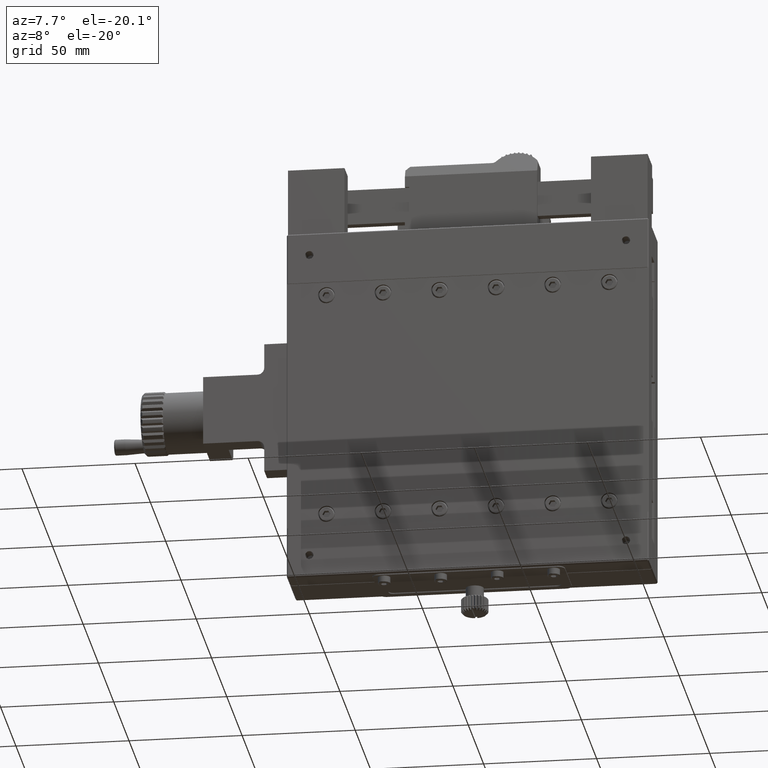
[diagram: clean part render]
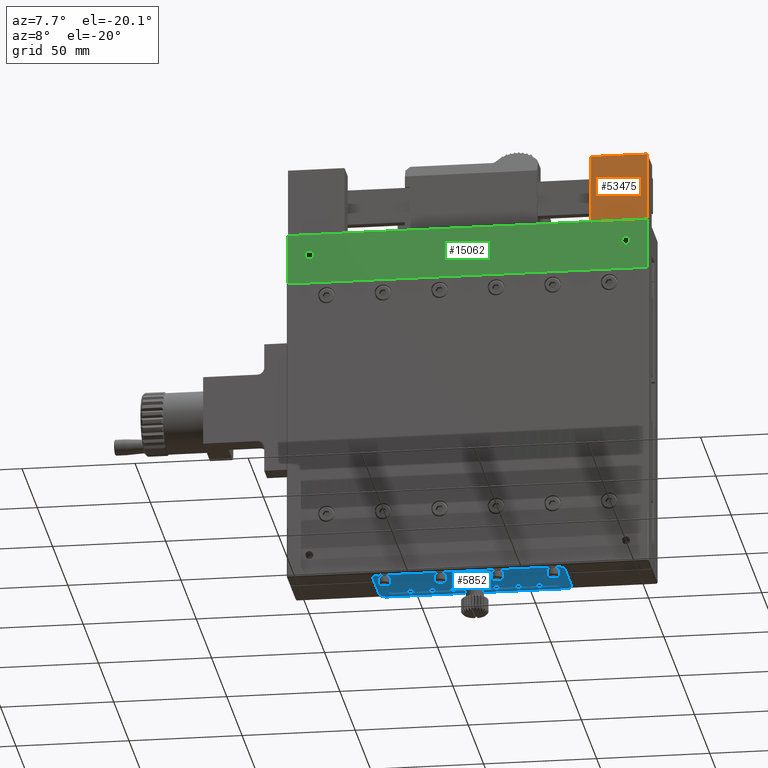
[diagram: same view with three faces highlighted in distinct colors, each labeled with its STEP entity id]
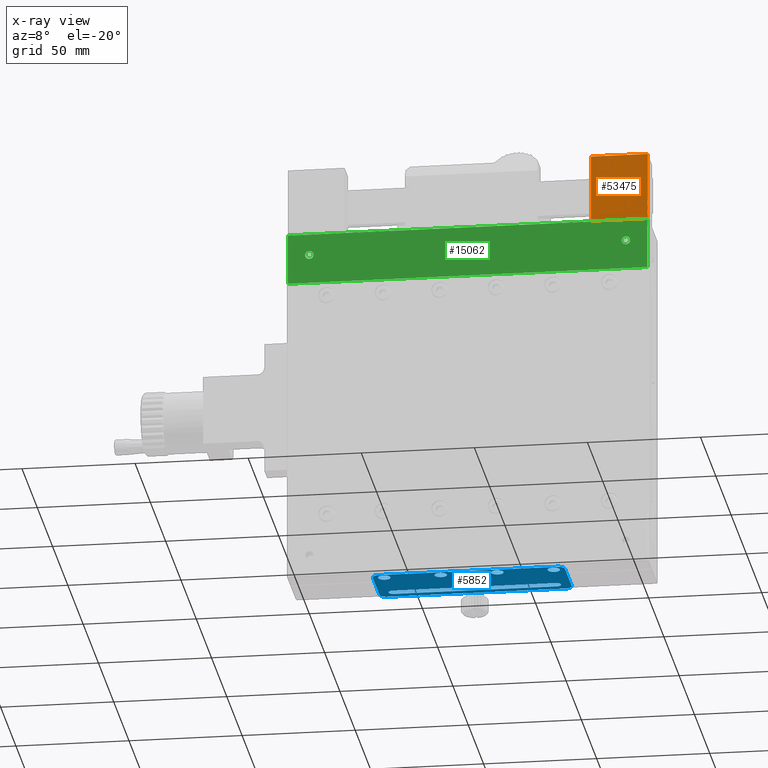
[diagram: x-ray of the same camera — body ghosted, the three highlighted faces saturated]
A machine part, auxiliary view with three faces highlighted in distinct colors.
The next image is the same camera in x-ray (body ghosted, the three faces saturated) — at least one of them is partly hidden behind the body in this view.
Their STEP definitions:

[orange] entity #53475 — the highlighted planar face has unit normal (0, -1, 0).
#1744 = EDGE_CURVE ( 'NONE', #56070, #10539, #27890, .T. ) ;
#5442 = ORIENTED_EDGE ( 'NONE', *, *, #47075, .T. ) ;
#6147 = LINE ( 'NONE', #25250, #39465 ) ;
#7701 = ORIENTED_EDGE ( 'NONE', *, *, #46593, .T. ) ;
#8169 = CARTESIAN_POINT ( 'NONE',  ( -159.5000000000000000, 0.5000000000000000000, 110.0000000000000000 ) ) ;
#9274 = EDGE_CURVE ( 'NONE', #33599, #56070, #6147, .T. ) ;
#9467 = EDGE_LOOP ( 'NONE', ( #10832, #5442, #7701, #27907 ) ) ;
#10539 = VERTEX_POINT ( 'NONE', #12409 ) ;
#10832 = ORIENTED_EDGE ( 'NONE', *, *, #1744, .T. ) ;
#12409 = CARTESIAN_POINT ( 'NONE',  ( -0.5000000000000002220, 0.5000000000000001110, 110.0000000000000000 ) ) ;
#15753 = CARTESIAN_POINT ( 'NONE',  ( -25.50000000000000000, 0.5000000000000001110, 110.0000000000000000 ) ) ;
#17102 = CARTESIAN_POINT ( 'NONE',  ( -159.5000000000000000, 0.5000000000000000000, 110.0000000000000000 ) ) ;
#18682 = VECTOR ( 'NONE', #50336, 1000.000000000000000 ) ;
#20592 = VERTEX_POINT ( 'NONE', #15753 ) ;
#21171 = CARTESIAN_POINT ( 'NONE',  ( -25.49999999999999645, 0.5000000000000000000, 80.00000000000000000 ) ) ;
#25250 = CARTESIAN_POINT ( 'NONE',  ( -160.0000000000000000, 0.5000000000000000000, 80.00000000000000000 ) ) ;
#26801 = LINE ( 'NONE', #17102, #37261 ) ;
#27890 = LINE ( 'NONE', #47005, #18682 ) ;
#27907 = ORIENTED_EDGE ( 'NONE', *, *, #9274, .T. ) ;
#29861 = LINE ( 'NONE', #54331, #35226 ) ;
#33599 = VERTEX_POINT ( 'NONE', #21171 ) ;
#35226 = VECTOR ( 'NONE', #41369, 1000.000000000000000 ) ;
#35270 = DIRECTION ( 'NONE',  ( 1.000000000000000000, -0.000000000000000000, 0.000000000000000000 ) ) ;
#35425 = DIRECTION ( 'NONE',  ( 0.000000000000000000, -1.000000000000000000, 0.000000000000000000 ) ) ;
#37261 = VECTOR ( 'NONE', #50324, 1000.000000000000000 ) ;
#39465 = VECTOR ( 'NONE', #35270, 1000.000000000000000 ) ;
#41369 = DIRECTION ( 'NONE',  ( 0.000000000000000000, -0.000000000000000000, -1.000000000000000000 ) ) ;
#44704 = AXIS2_PLACEMENT_3D ( 'NONE', #8169, #35425, #54567 ) ;
#46593 = EDGE_CURVE ( 'NONE', #20592, #33599, #29861, .T. ) ;
#47005 = CARTESIAN_POINT ( 'NONE',  ( -0.5000000000000004441, 0.5000000000000000000, 110.0000000000000000 ) ) ;
#47075 = EDGE_CURVE ( 'NONE', #10539, #20592, #26801, .T. ) ;
#50324 = DIRECTION ( 'NONE',  ( -1.000000000000000000, -0.000000000000000000, -0.000000000000000000 ) ) ;
#50336 = DIRECTION ( 'NONE',  ( -0.000000000000000000, 0.000000000000000000, 1.000000000000000000 ) ) ;
#53475 = ADVANCED_FACE ( 'NONE', ( #60517 ), #55792, .T. ) ;
#54331 = CARTESIAN_POINT ( 'NONE',  ( -25.49999999999999645, 0.5000000000000000000, 110.0000000000000000 ) ) ;
#54567 = DIRECTION ( 'NONE',  ( 0.000000000000000000, -0.000000000000000000, -1.000000000000000000 ) ) ;
#55792 = PLANE ( 'NONE',  #44704 ) ;
#56070 = VERTEX_POINT ( 'NONE', #57504 ) ;
#57504 = CARTESIAN_POINT ( 'NONE',  ( -0.4999999999999950040, 0.5000000000000000000, 80.00000000000000000 ) ) ;
#60517 = FACE_OUTER_BOUND ( 'NONE', #9467, .T. ) ;

[blue] entity #5852 — the highlighted planar face has unit normal (0, 0, 1).
#1318 = DIRECTION ( 'NONE',  ( 1.000000000000000000, 0.000000000000000000, 0.000000000000000000 ) ) ;
#2185 = DIRECTION ( 'NONE',  ( 1.000000000000000000, 0.000000000000000000, 0.000000000000000000 ) ) ;
#2198 = ORIENTED_EDGE ( 'NONE', *, *, #23517, .T. ) ;
#2387 = CARTESIAN_POINT ( 'NONE',  ( -119.5000000000000284, 29.00000000000000711, -80.50000000000000000 ) ) ;
#2589 = PLANE ( 'NONE',  #23372 ) ;
#2691 = CIRCLE ( 'NONE', #44743, 2.750000000000002665 ) ;
#2830 = CARTESIAN_POINT ( 'NONE',  ( -37.50000000000000000, 4.000000000000000000, -80.50000000000000000 ) ) ;
#2917 = CARTESIAN_POINT ( 'NONE',  ( -122.5000000000000000, 26.00000000000000355, -80.50000000000000000 ) ) ;
#3234 = FACE_BOUND ( 'NONE', #37998, .T. ) ;
#3583 = EDGE_CURVE ( 'NONE', #16183, #48871, #17702, .T. ) ;
#3729 = EDGE_CURVE ( 'NONE', #48871, #6278, #61439, .T. ) ;
#4860 = ORIENTED_EDGE ( 'NONE', *, *, #24757, .F. ) ;
#5064 = CARTESIAN_POINT ( 'NONE',  ( -44.00000000000000000, 23.50000000000000000, -80.50000000000000000 ) ) ;
#5435 = CARTESIAN_POINT ( 'NONE',  ( -89.75000000000000000, 4.500000000000000888, -80.50000000000000000 ) ) ;
#5569 = DIRECTION ( 'NONE',  ( -0.000000000000000000, -0.000000000000000000, -1.000000000000000000 ) ) ;
#5852 = ADVANCED_FACE ( 'NONE', ( #26396, #17010, #3234, #22324, #11972, #40195 ), #2589, .F. ) ;
#6272 = EDGE_LOOP ( 'NONE', ( #24681, #43340, #48207, #41958, #4860, #33880, #24431, #19159 ) ) ;
#6278 = VERTEX_POINT ( 'NONE', #57544 ) ;
#6373 = VERTEX_POINT ( 'NONE', #11974 ) ;
#6545 = DIRECTION ( 'NONE',  ( 1.000000000000000000, 0.000000000000000000, 0.000000000000000000 ) ) ;
#6650 = ORIENTED_EDGE ( 'NONE', *, *, #12755, .F. ) ;
#7579 = EDGE_LOOP ( 'NONE', ( #41178 ) ) ;
#7750 = CIRCLE ( 'NONE', #58786, 2.149999999999999023 ) ;
#8062 = VECTOR ( 'NONE', #33444, 1000.000000000000000 ) ;
#8585 = CIRCLE ( 'NONE', #24594, 3.000000000000016431 ) ;
#9744 = EDGE_CURVE ( 'NONE', #35169, #54342, #59556, .T. ) ;
#10602 = CARTESIAN_POINT ( 'NONE',  ( -40.50000000000000000, 26.00000000000000355, -80.50000000000000000 ) ) ;
#10649 = DIRECTION ( 'NONE',  ( 1.000000000000000000, 0.000000000000000000, 0.000000000000000000 ) ) ;
#11677 = AXIS2_PLACEMENT_3D ( 'NONE', #5064, #47999, #10649 ) ;
#11802 = CARTESIAN_POINT ( 'NONE',  ( -42.50000000000000000, 4.500000000000000888, -80.50000000000000000 ) ) ;
#11893 = DIRECTION ( 'NONE',  ( -0.000000000000000000, 1.000000000000000000, 0.000000000000000000 ) ) ;
#11972 = FACE_BOUND ( 'NONE', #7579, .T. ) ;
#11974 = CARTESIAN_POINT ( 'NONE',  ( -39.75000000000000000, 4.500000000000000888, -80.50000000000000000 ) ) ;
#12413 = EDGE_CURVE ( 'NONE', #54342, #27736, #35993, .T. ) ;
#12559 = EDGE_LOOP ( 'NONE', ( #48182 ) ) ;
#12755 = EDGE_CURVE ( 'NONE', #38926, #38926, #36037, .T. ) ;
#14678 = VECTOR ( 'NONE', #37272, 1000.000000000000000 ) ;
#14868 = VERTEX_POINT ( 'NONE', #22109 ) ;
#15901 = DIRECTION ( 'NONE',  ( 1.000000000000000000, 0.000000000000000000, 0.000000000000000000 ) ) ;
#16183 = VERTEX_POINT ( 'NONE', #20196 ) ;
#16598 = CARTESIAN_POINT ( 'NONE',  ( -44.00000000000000000, 25.64999999999999858, -80.50000000000000000 ) ) ;
#17010 = FACE_BOUND ( 'NONE', #20991, .T. ) ;
#17235 = DIRECTION ( 'NONE',  ( 1.000000000000000000, 0.000000000000000000, 0.000000000000000000 ) ) ;
#17447 = CARTESIAN_POINT ( 'NONE',  ( -92.50000000000000000, 4.500000000000000888, -80.50000000000000000 ) ) ;
#17630 = CARTESIAN_POINT ( 'NONE',  ( -40.50000000000000000, 29.00000000000000000, -80.50000000000000000 ) ) ;
#17702 = CIRCLE ( 'NONE', #11677, 2.149999999999999023 ) ;
#18981 = DIRECTION ( 'NONE',  ( 1.000000000000000000, 0.000000000000000000, 0.000000000000000000 ) ) ;
#18982 = VERTEX_POINT ( 'NONE', #33326 ) ;
#19159 = ORIENTED_EDGE ( 'NONE', *, *, #50647, .F. ) ;
#20196 = CARTESIAN_POINT ( 'NONE',  ( -44.00000000000000000, 21.35000000000000142, -80.50000000000000000 ) ) ;
#20788 = AXIS2_PLACEMENT_3D ( 'NONE', #17447, #35909, #18981 ) ;
#20819 = ORIENTED_EDGE ( 'NONE', *, *, #3729, .T. ) ;
#20975 = DIRECTION ( 'NONE',  ( 0.000000000000000000, 0.000000000000000000, 1.000000000000000000 ) ) ;
#20991 = EDGE_LOOP ( 'NONE', ( #2198, #41295, #46362, #20819 ) ) ;
#21017 = DIRECTION ( 'NONE',  ( 0.000000000000000000, 0.000000000000000000, 1.000000000000000000 ) ) ;
#22109 = CARTESIAN_POINT ( 'NONE',  ( -40.49999999999999289, 1.000000000000000000, -80.50000000000000000 ) ) ;
#22222 = EDGE_CURVE ( 'NONE', #31375, #18982, #61673, .T. ) ;
#22324 = FACE_BOUND ( 'NONE', #12559, .T. ) ;
#23036 = AXIS2_PLACEMENT_3D ( 'NONE', #52819, #46869, #23060 ) ;
#23060 = DIRECTION ( 'NONE',  ( 1.000000000000000000, 0.000000000000000000, 0.000000000000000000 ) ) ;
#23372 = AXIS2_PLACEMENT_3D ( 'NONE', #36412, #55547, #59329 ) ;
#23517 = EDGE_CURVE ( 'NONE', #6278, #41956, #7750, .T. ) ;
#24071 = EDGE_CURVE ( 'NONE', #6373, #6373, #39923, .T. ) ;
#24431 = ORIENTED_EDGE ( 'NONE', *, *, #22222, .F. ) ;
#24594 = AXIS2_PLACEMENT_3D ( 'NONE', #59274, #25712, #1318 ) ;
#24681 = ORIENTED_EDGE ( 'NONE', *, *, #56184, .F. ) ;
#24757 = EDGE_CURVE ( 'NONE', #39988, #14868, #61275, .T. ) ;
#24891 = CARTESIAN_POINT ( 'NONE',  ( -40.50000000000000000, 29.00000000000000000, -80.50000000000000000 ) ) ;
#25013 = VERTEX_POINT ( 'NONE', #44151 ) ;
#25712 = DIRECTION ( 'NONE',  ( 0.000000000000000000, 0.000000000000000000, 1.000000000000000000 ) ) ;
#26396 = FACE_OUTER_BOUND ( 'NONE', #6272, .T. ) ;
#26503 = DIRECTION ( 'NONE',  ( 0.000000000000000000, 0.000000000000000000, 1.000000000000000000 ) ) ;
#27736 = VERTEX_POINT ( 'NONE', #17630 ) ;
#28683 = VERTEX_POINT ( 'NONE', #2387 ) ;
#29291 = CARTESIAN_POINT ( 'NONE',  ( -116.0000000000000000, 21.35000000000000142, -80.50000000000000000 ) ) ;
#30512 = DIRECTION ( 'NONE',  ( -1.000000000000000000, -0.000000000000000000, 0.000000000000000000 ) ) ;
#30734 = CARTESIAN_POINT ( 'NONE',  ( -37.50000000000000000, 26.00000000000000355, -80.50000000000000000 ) ) ;
#31132 = CARTESIAN_POINT ( 'NONE',  ( -116.0000000000000000, 23.50000000000000000, -80.50000000000000000 ) ) ;
#31375 = VERTEX_POINT ( 'NONE', #2917 ) ;
#31435 = DIRECTION ( 'NONE',  ( 0.000000000000000000, 0.000000000000000000, 1.000000000000000000 ) ) ;
#31821 = DIRECTION ( 'NONE',  ( -0.000000000000000000, -0.000000000000000000, -1.000000000000000000 ) ) ;
#32466 = VECTOR ( 'NONE', #17235, 1000.000000000000000 ) ;
#32720 = CARTESIAN_POINT ( 'NONE',  ( -119.5000000000000142, 1.000000000000000000, -80.50000000000000000 ) ) ;
#33326 = CARTESIAN_POINT ( 'NONE',  ( -122.5000000000000000, 3.999999999999994671, -80.50000000000000000 ) ) ;
#33444 = DIRECTION ( 'NONE',  ( -0.000000000000000000, -1.000000000000000000, 0.000000000000000000 ) ) ;
#33880 = ORIENTED_EDGE ( 'NONE', *, *, #39473, .F. ) ;
#33938 = VECTOR ( 'NONE', #30512, 1000.000000000000000 ) ;
#34439 = EDGE_CURVE ( 'NONE', #41956, #16183, #35702, .T. ) ;
#35169 = VERTEX_POINT ( 'NONE', #50310 ) ;
#35702 = LINE ( 'NONE', #54855, #32466 ) ;
#35861 = AXIS2_PLACEMENT_3D ( 'NONE', #38958, #21017, #57773 ) ;
#35909 = DIRECTION ( 'NONE',  ( -0.000000000000000000, -0.000000000000000000, -1.000000000000000000 ) ) ;
#35993 = CIRCLE ( 'NONE', #53014, 3.000000000000002665 ) ;
#36037 = CIRCLE ( 'NONE', #23036, 2.750000000000002665 ) ;
#36412 = CARTESIAN_POINT ( 'NONE',  ( -119.5000000000000142, 26.00000000000000355, -80.50000000000000000 ) ) ;
#37272 = DIRECTION ( 'NONE',  ( -1.000000000000000000, -0.000000000000000000, 0.000000000000000000 ) ) ;
#37998 = EDGE_LOOP ( 'NONE', ( #39725 ) ) ;
#38617 = CARTESIAN_POINT ( 'NONE',  ( -114.7500000000000000, 4.500000000000000888, -80.50000000000000000 ) ) ;
#38926 = VERTEX_POINT ( 'NONE', #38617 ) ;
#38958 = CARTESIAN_POINT ( 'NONE',  ( -40.50000000000000000, 3.999999999999989786, -80.50000000000000000 ) ) ;
#39473 = EDGE_CURVE ( 'NONE', #18982, #39988, #40708, .T. ) ;
#39725 = ORIENTED_EDGE ( 'NONE', *, *, #24071, .F. ) ;
#39923 = CIRCLE ( 'NONE', #43963, 2.750000000000002665 ) ;
#39988 = VERTEX_POINT ( 'NONE', #47099 ) ;
#40195 = FACE_BOUND ( 'NONE', #60858, .T. ) ;
#40708 = CIRCLE ( 'NONE', #49754, 2.999999999999988898 ) ;
#40853 = CIRCLE ( 'NONE', #35861, 2.999999999999988898 ) ;
#41168 = EDGE_CURVE ( 'NONE', #14868, #35169, #40853, .T. ) ;
#41178 = ORIENTED_EDGE ( 'NONE', *, *, #61886, .F. ) ;
#41295 = ORIENTED_EDGE ( 'NONE', *, *, #34439, .T. ) ;
#41816 = CIRCLE ( 'NONE', #20788, 2.750000000000002665 ) ;
#41956 = VERTEX_POINT ( 'NONE', #29291 ) ;
#41958 = ORIENTED_EDGE ( 'NONE', *, *, #41168, .F. ) ;
#43340 = ORIENTED_EDGE ( 'NONE', *, *, #12413, .F. ) ;
#43963 = AXIS2_PLACEMENT_3D ( 'NONE', #11802, #5569, #15901 ) ;
#44151 = CARTESIAN_POINT ( 'NONE',  ( -64.75000000000000000, 4.500000000000000888, -80.50000000000000000 ) ) ;
#44743 = AXIS2_PLACEMENT_3D ( 'NONE', #60990, #31821, #6545 ) ;
#46362 = ORIENTED_EDGE ( 'NONE', *, *, #3583, .T. ) ;
#46869 = DIRECTION ( 'NONE',  ( -0.000000000000000000, -0.000000000000000000, -1.000000000000000000 ) ) ;
#47099 = CARTESIAN_POINT ( 'NONE',  ( -119.5000000000000142, 1.000000000000000000, -80.50000000000000000 ) ) ;
#47602 = CARTESIAN_POINT ( 'NONE',  ( -44.00000000000000000, 25.64999999999999858, -80.50000000000000000 ) ) ;
#47999 = DIRECTION ( 'NONE',  ( 0.000000000000000000, 0.000000000000000000, 1.000000000000000000 ) ) ;
#48182 = ORIENTED_EDGE ( 'NONE', *, *, #53761, .F. ) ;
#48207 = ORIENTED_EDGE ( 'NONE', *, *, #9744, .F. ) ;
#48871 = VERTEX_POINT ( 'NONE', #16598 ) ;
#49708 = CARTESIAN_POINT ( 'NONE',  ( -119.5000000000000142, 3.999999999999989786, -80.50000000000000000 ) ) ;
#49754 = AXIS2_PLACEMENT_3D ( 'NONE', #49708, #26503, #50640 ) ;
#50310 = CARTESIAN_POINT ( 'NONE',  ( -37.50000000000000000, 3.999999999999994671, -80.50000000000000000 ) ) ;
#50558 = DIRECTION ( 'NONE',  ( 1.000000000000000000, 0.000000000000000000, 0.000000000000000000 ) ) ;
#50640 = DIRECTION ( 'NONE',  ( 1.000000000000000000, 0.000000000000000000, 0.000000000000000000 ) ) ;
#50647 = EDGE_CURVE ( 'NONE', #28683, #31375, #8585, .T. ) ;
#52467 = DIRECTION ( 'NONE',  ( 1.000000000000000000, 0.000000000000000000, 0.000000000000000000 ) ) ;
#52819 = CARTESIAN_POINT ( 'NONE',  ( -117.5000000000000142, 4.500000000000000888, -80.50000000000000000 ) ) ;
#53014 = AXIS2_PLACEMENT_3D ( 'NONE', #10602, #20975, #2185 ) ;
#53097 = VERTEX_POINT ( 'NONE', #5435 ) ;
#53761 = EDGE_CURVE ( 'NONE', #25013, #25013, #2691, .T. ) ;
#54342 = VERTEX_POINT ( 'NONE', #30734 ) ;
#54855 = CARTESIAN_POINT ( 'NONE',  ( -116.0000000000000000, 21.35000000000000142, -80.50000000000000000 ) ) ;
#55547 = DIRECTION ( 'NONE',  ( 0.000000000000000000, 0.000000000000000000, 1.000000000000000000 ) ) ;
#56184 = EDGE_CURVE ( 'NONE', #27736, #28683, #58737, .T. ) ;
#56640 = CARTESIAN_POINT ( 'NONE',  ( -122.5000000000000000, 26.00000000000000355, -80.50000000000000000 ) ) ;
#56974 = VECTOR ( 'NONE', #52467, 1000.000000000000000 ) ;
#57544 = CARTESIAN_POINT ( 'NONE',  ( -116.0000000000000000, 25.64999999999999858, -80.50000000000000000 ) ) ;
#57773 = DIRECTION ( 'NONE',  ( 1.000000000000000000, 0.000000000000000000, 0.000000000000000000 ) ) ;
#58737 = LINE ( 'NONE', #24891, #33938 ) ;
#58786 = AXIS2_PLACEMENT_3D ( 'NONE', #31132, #31435, #50558 ) ;
#59274 = CARTESIAN_POINT ( 'NONE',  ( -119.5000000000000142, 26.00000000000000355, -80.50000000000000000 ) ) ;
#59329 = DIRECTION ( 'NONE',  ( 1.000000000000000000, 0.000000000000000000, -0.000000000000000000 ) ) ;
#59420 = VECTOR ( 'NONE', #11893, 1000.000000000000000 ) ;
#59556 = LINE ( 'NONE', #2830, #59420 ) ;
#60858 = EDGE_LOOP ( 'NONE', ( #6650 ) ) ;
#60990 = CARTESIAN_POINT ( 'NONE',  ( -67.50000000000000000, 4.500000000000000888, -80.50000000000000000 ) ) ;
#61275 = LINE ( 'NONE', #32720, #56974 ) ;
#61439 = LINE ( 'NONE', #47602, #14678 ) ;
#61673 = LINE ( 'NONE', #56640, #8062 ) ;
#61886 = EDGE_CURVE ( 'NONE', #53097, #53097, #41816, .T. ) ;

[green] entity #15062 — the highlighted planar face has unit normal (0, -1, 0).
#1084 = FACE_OUTER_BOUND ( 'NONE', #17915, .T. ) ;
#4838 = CARTESIAN_POINT ( 'NONE',  ( -0.5000000000000004441, 8.131516293641283255E-17, 57.00000000000000000 ) ) ;
#7130 = VERTEX_POINT ( 'NONE', #4838 ) ;
#8430 = EDGE_CURVE ( 'NONE', #26149, #26149, #54374, .T. ) ;
#9931 = DIRECTION ( 'NONE',  ( -1.000000000000000000, -0.000000000000000000, -0.000000000000000000 ) ) ;
#10169 = CIRCLE ( 'NONE', #46213, 1.844000000000012296 ) ;
#12772 = CARTESIAN_POINT ( 'NONE',  ( -0.4999999999999588107, -1.016439536705160160E-16, 79.50000000000000000 ) ) ;
#12787 = EDGE_LOOP ( 'NONE', ( #40385 ) ) ;
#13715 = LINE ( 'NONE', #56657, #53597 ) ;
#14315 = DIRECTION ( 'NONE',  ( 1.000000000000000000, 0.000000000000000000, -0.000000000000000000 ) ) ;
#15062 = ADVANCED_FACE ( 'NONE', ( #1084, #58406, #39575 ), #49937, .T. ) ;
#16033 = VERTEX_POINT ( 'NONE', #12772 ) ;
#16082 = CARTESIAN_POINT ( 'NONE',  ( -160.0000000000000000, 0.000000000000000000, 80.00000000000000000 ) ) ;
#17370 = AXIS2_PLACEMENT_3D ( 'NONE', #50268, #27667, #55890 ) ;
#17771 = VECTOR ( 'NONE', #47696, 1000.000000000000000 ) ;
#17915 = EDGE_LOOP ( 'NONE', ( #51768, #29635, #48042, #48136 ) ) ;
#18177 = CARTESIAN_POINT ( 'NONE',  ( -150.0000000000000000, 0.000000000000000000, 71.84400000000002251 ) ) ;
#19049 = CARTESIAN_POINT ( 'NONE',  ( -160.0000000000000000, 0.000000000000000000, 79.50000000000000000 ) ) ;
#19494 = CARTESIAN_POINT ( 'NONE',  ( -159.5000000000000000, 0.000000000000000000, 80.00000000000000000 ) ) ;
#20978 = EDGE_LOOP ( 'NONE', ( #56574 ) ) ;
#21960 = CARTESIAN_POINT ( 'NONE',  ( -160.0000000000000000, 0.000000000000000000, 57.00000000000000000 ) ) ;
#23707 = VECTOR ( 'NONE', #14315, 1000.000000000000000 ) ;
#23713 = EDGE_CURVE ( 'NONE', #42625, #36896, #57112, .T. ) ;
#25181 = DIRECTION ( 'NONE',  ( 0.000000000000000000, -0.000000000000000000, -1.000000000000000000 ) ) ;
#25711 = CARTESIAN_POINT ( 'NONE',  ( -159.5000000000000000, -2.439454888092384977E-16, 79.50000000000000000 ) ) ;
#26149 = VERTEX_POINT ( 'NONE', #54983 ) ;
#27667 = DIRECTION ( 'NONE',  ( 0.000000000000000000, 1.000000000000000000, 0.000000000000000000 ) ) ;
#28448 = DIRECTION ( 'NONE',  ( 0.000000000000000000, 0.000000000000000000, 1.000000000000000000 ) ) ;
#28772 = DIRECTION ( 'NONE',  ( 0.000000000000000000, 1.000000000000000000, 0.000000000000000000 ) ) ;
#29635 = ORIENTED_EDGE ( 'NONE', *, *, #23713, .F. ) ;
#30910 = VECTOR ( 'NONE', #9931, 1000.000000000000000 ) ;
#33196 = CARTESIAN_POINT ( 'NONE',  ( -159.5000000000000000, 1.355252715606880543E-17, 57.00000000000000000 ) ) ;
#35496 = DIRECTION ( 'NONE',  ( 0.000000000000000000, -1.000000000000000000, 0.000000000000000000 ) ) ;
#36896 = VERTEX_POINT ( 'NONE', #25711 ) ;
#39254 = EDGE_CURVE ( 'NONE', #42625, #7130, #48185, .T. ) ;
#39575 = FACE_BOUND ( 'NONE', #20978, .T. ) ;
#40385 = ORIENTED_EDGE ( 'NONE', *, *, #8430, .T. ) ;
#42625 = VERTEX_POINT ( 'NONE', #33196 ) ;
#43519 = VERTEX_POINT ( 'NONE', #18177 ) ;
#45588 = EDGE_CURVE ( 'NONE', #43519, #43519, #10169, .T. ) ;
#46213 = AXIS2_PLACEMENT_3D ( 'NONE', #57606, #28772, #53535 ) ;
#47105 = AXIS2_PLACEMENT_3D ( 'NONE', #16082, #35496, #25181 ) ;
#47696 = DIRECTION ( 'NONE',  ( 0.000000000000000000, 0.000000000000000000, 1.000000000000000000 ) ) ;
#48042 = ORIENTED_EDGE ( 'NONE', *, *, #39254, .T. ) ;
#48136 = ORIENTED_EDGE ( 'NONE', *, *, #52456, .T. ) ;
#48185 = LINE ( 'NONE', #21960, #23707 ) ;
#49937 = PLANE ( 'NONE',  #47105 ) ;
#50268 = CARTESIAN_POINT ( 'NONE',  ( -10.00000000000000000, 0.000000000000000000, 70.00000000000000000 ) ) ;
#51768 = ORIENTED_EDGE ( 'NONE', *, *, #55672, .T. ) ;
#52456 = EDGE_CURVE ( 'NONE', #7130, #16033, #13715, .T. ) ;
#53535 = DIRECTION ( 'NONE',  ( 0.000000000000000000, 0.000000000000000000, 1.000000000000000000 ) ) ;
#53597 = VECTOR ( 'NONE', #28448, 1000.000000000000000 ) ;
#54374 = CIRCLE ( 'NONE', #17370, 1.843999999999998529 ) ;
#54983 = CARTESIAN_POINT ( 'NONE',  ( -10.00000000000000000, 0.000000000000000000, 71.84400000000000830 ) ) ;
#55672 = EDGE_CURVE ( 'NONE', #16033, #36896, #57885, .T. ) ;
#55890 = DIRECTION ( 'NONE',  ( 0.000000000000000000, 0.000000000000000000, 1.000000000000000000 ) ) ;
#56574 = ORIENTED_EDGE ( 'NONE', *, *, #45588, .T. ) ;
#56657 = CARTESIAN_POINT ( 'NONE',  ( -0.5000000000000003331, 3.252606517456513302E-16, 0.000000000000000000 ) ) ;
#57112 = LINE ( 'NONE', #19494, #17771 ) ;
#57606 = CARTESIAN_POINT ( 'NONE',  ( -150.0000000000000000, 0.000000000000000000, 70.00000000000000000 ) ) ;
#57885 = LINE ( 'NONE', #19049, #30910 ) ;
#58406 = FACE_BOUND ( 'NONE', #12787, .T. ) ;